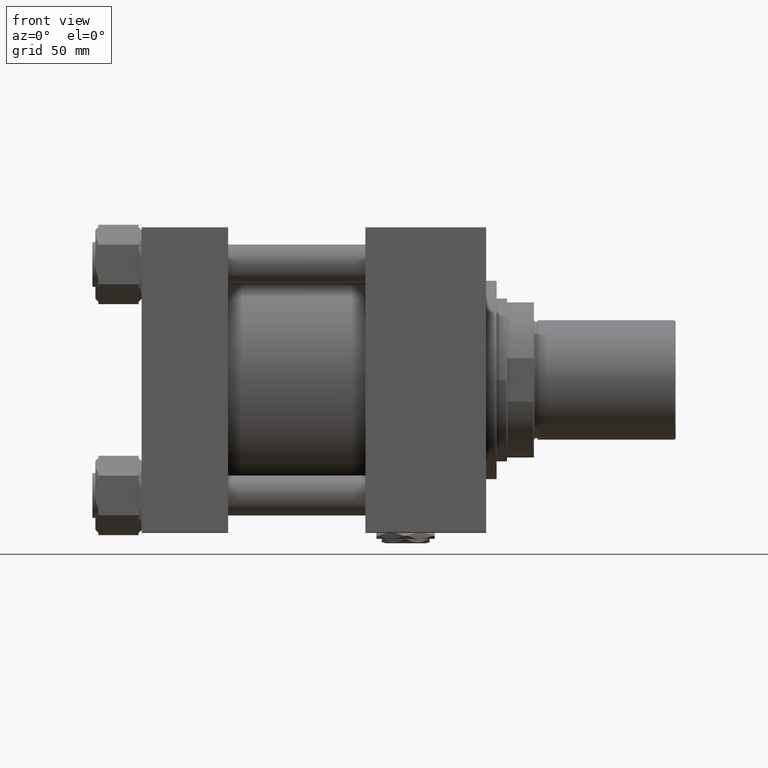
[diagram: clean part render]
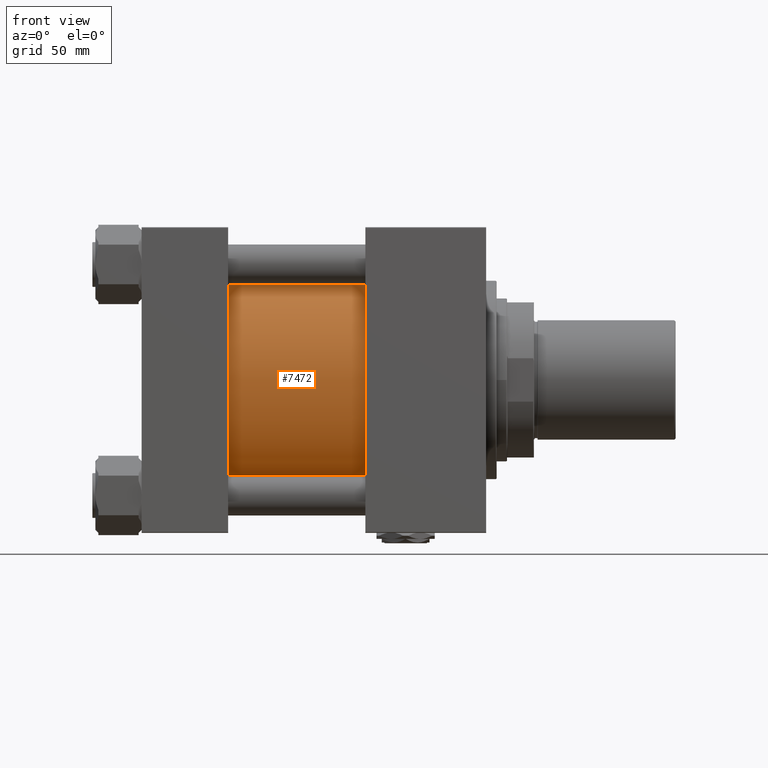
[diagram: same view with one face highlighted and labeled with its STEP entity id]
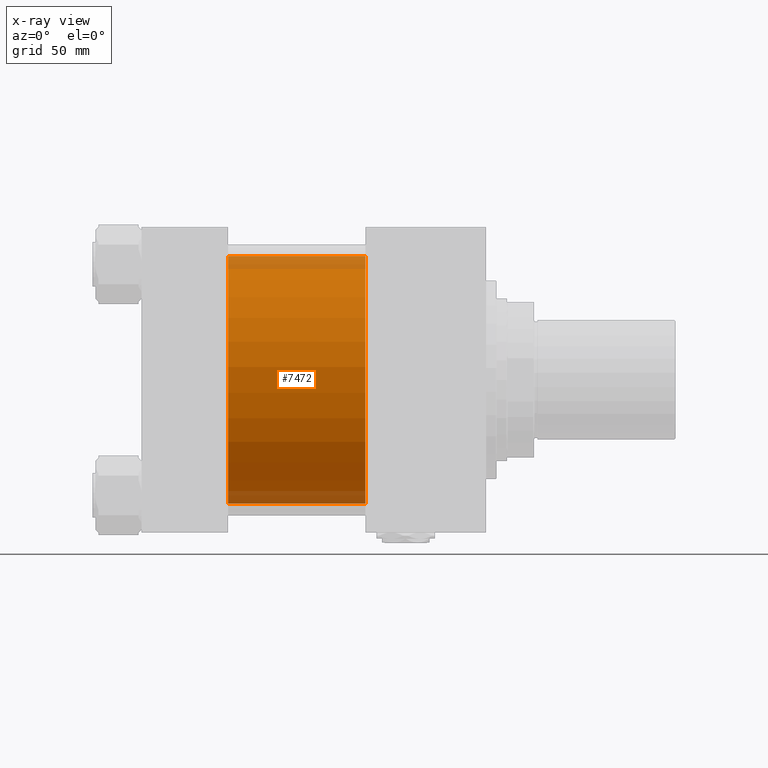
[diagram: x-ray of the same camera — body ghosted, the highlighted face saturated]
A machine part, front view. The second image highlights one B-rep face of the part: STEP entity #7472.
The next image is the same camera in x-ray: the body ghosted, the highlighted face saturated — about 10% of this face is hidden behind the body in this view.
In plain terms, the highlighted cylindrical surface (partial cylindrical patch) has radius 83 mm, axis along (-1, -0, -0).
Its self-contained STEP definition (entity closure, byte-faithful):
#1641 = ORIENTED_EDGE ( 'NONE', *, *, #43117, .T. ) ;
#2380 = CARTESIAN_POINT ( 'NONE',  ( 150.0000000000000000, 7.562483218957820855E-15, -83.00000000000000000 ) ) ;
#3861 = EDGE_CURVE ( 'NONE', #45703, #17529, #50629, .T. ) ;
#4237 = CIRCLE ( 'NONE', #52252, 83.00000000000000000 ) ;
#5274 = AXIS2_PLACEMENT_3D ( 'NONE', #44584, #40287, #7870 ) ;
#6038 = DIRECTION ( 'NONE',  ( 1.000000000000000000, -0.000000000000000000, -0.000000000000000000 ) ) ;
#6267 = DIRECTION ( 'NONE',  ( -1.000000000000000000, -0.000000000000000000, -0.000000000000000000 ) ) ;
#7275 = ORIENTED_EDGE ( 'NONE', *, *, #9937, .T. ) ;
#7472 = ADVANCED_FACE ( 'NONE', ( #43500 ), #10543, .T. ) ;
#7870 = DIRECTION ( 'NONE',  ( 0.000000000000000000, 0.000000000000000000, -1.000000000000000000 ) ) ;
#9937 = EDGE_CURVE ( 'NONE', #45703, #22183, #42472, .T. ) ;
#10543 = CYLINDRICAL_SURFACE ( 'NONE', #41378, 83.00000000000000000 ) ;
#11394 = VECTOR ( 'NONE', #17387, 1000.000000000000000 ) ;
#12472 = CARTESIAN_POINT ( 'NONE',  ( 57.99999999999999289, 7.562483218957820855E-15, -83.00000000000000000 ) ) ;
#12479 = ORIENTED_EDGE ( 'NONE', *, *, #3861, .F. ) ;
#14301 = DIRECTION ( 'NONE',  ( 0.000000000000000000, 0.000000000000000000, 1.000000000000000000 ) ) ;
#15002 = ORIENTED_EDGE ( 'NONE', *, *, #18200, .F. ) ;
#17387 = DIRECTION ( 'NONE',  ( -1.000000000000000000, -0.000000000000000000, -0.000000000000000000 ) ) ;
#17529 = VERTEX_POINT ( 'NONE', #2380 ) ;
#17541 = CARTESIAN_POINT ( 'NONE',  ( 150.0000000000000000, -2.602085213965210642E-15, 83.00000000000000000 ) ) ;
#18200 = EDGE_CURVE ( 'NONE', #17529, #36065, #24877, .T. ) ;
#22183 = VERTEX_POINT ( 'NONE', #35459 ) ;
#23325 = CARTESIAN_POINT ( 'NONE',  ( 150.0000000000000000, -2.602085213965210642E-15, 83.00000000000000000 ) ) ;
#24877 = LINE ( 'NONE', #41260, #11394 ) ;
#27891 = DIRECTION ( 'NONE',  ( 0.000000000000000000, 0.000000000000000000, 1.000000000000000000 ) ) ;
#29100 = EDGE_LOOP ( 'NONE', ( #15002, #12479, #7275, #1641 ) ) ;
#33710 = VECTOR ( 'NONE', #37642, 1000.000000000000000 ) ;
#35459 = CARTESIAN_POINT ( 'NONE',  ( 57.99999999999999289, -2.602085213965210642E-15, 83.00000000000000000 ) ) ;
#36065 = VERTEX_POINT ( 'NONE', #12472 ) ;
#37642 = DIRECTION ( 'NONE',  ( -1.000000000000000000, -0.000000000000000000, -0.000000000000000000 ) ) ;
#38199 = CARTESIAN_POINT ( 'NONE',  ( 57.99999999999999289, -2.602085213965210642E-15, 0.000000000000000000 ) ) ;
#40287 = DIRECTION ( 'NONE',  ( 1.000000000000000000, 0.000000000000000000, 0.000000000000000000 ) ) ;
#41260 = CARTESIAN_POINT ( 'NONE',  ( 150.0000000000000000, 7.562483218957820855E-15, -83.00000000000000000 ) ) ;
#41378 = AXIS2_PLACEMENT_3D ( 'NONE', #42977, #6267, #14301 ) ;
#42472 = LINE ( 'NONE', #17541, #33710 ) ;
#42977 = CARTESIAN_POINT ( 'NONE',  ( 150.0000000000000000, -2.602085213965210642E-15, 0.000000000000000000 ) ) ;
#43117 = EDGE_CURVE ( 'NONE', #22183, #36065, #4237, .T. ) ;
#43500 = FACE_OUTER_BOUND ( 'NONE', #29100, .T. ) ;
#44584 = CARTESIAN_POINT ( 'NONE',  ( 150.0000000000000000, -2.602085213965210642E-15, 0.000000000000000000 ) ) ;
#45703 = VERTEX_POINT ( 'NONE', #23325 ) ;
#50629 = CIRCLE ( 'NONE', #5274, 83.00000000000000000 ) ;
#52252 = AXIS2_PLACEMENT_3D ( 'NONE', #38199, #6038, #27891 ) ;